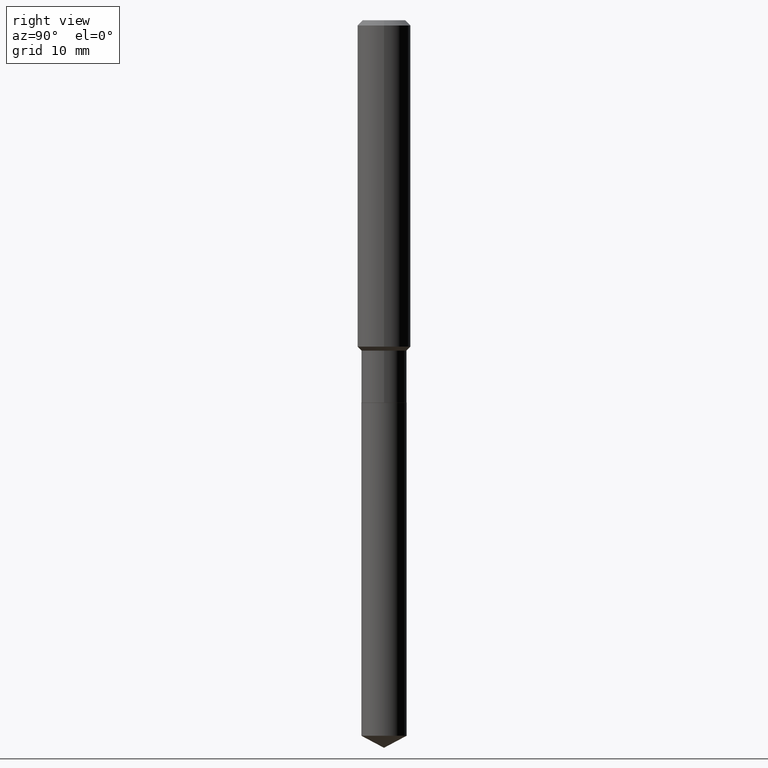
[diagram: clean part render]
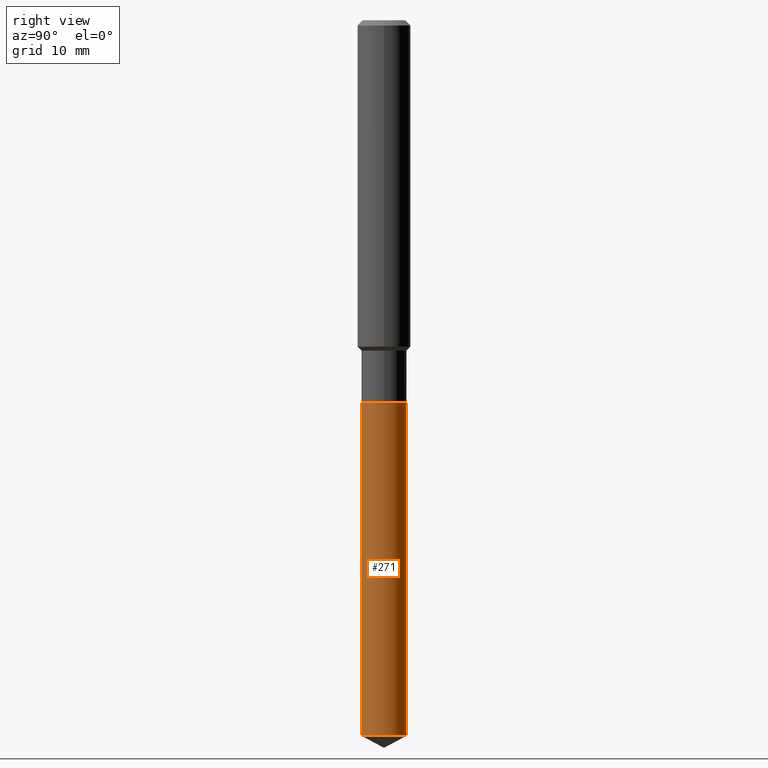
[diagram: same view with one face highlighted and labeled with its STEP entity id]
A machine part, right view. The second image highlights one B-rep face of the part: STEP entity #271.
In plain terms, the highlighted cylindrical surface (edge-blend (fillet) strip) has radius 2.5502 mm, axis along (-0, 0, 1).
Its self-contained STEP definition (entity closure, byte-faithful):
#31 = AXIS2_PLACEMENT_3D ( 'NONE', #105, #298, #260 ) ;
#42 = CARTESIAN_POINT ( 'NONE',  ( -7.010894528396234726E-16, -0.1004000000000110776, -3.174916373061186459 ) ) ;
#55 = DIRECTION ( 'NONE',  ( -6.982962677686266711E-15, -1.000000000000000000, 2.720964137115799877E-15 ) ) ;
#61 = CARTESIAN_POINT ( 'NONE',  ( -7.010894528396596616E-16, -0.1004000000000059289, -1.696800000000000086 ) ) ;
#71 = AXIS2_PLACEMENT_3D ( 'NONE', #234, #197, #55 ) ;
#76 = EDGE_CURVE ( 'NONE', #121, #106, #477, .T. ) ;
#102 = LINE ( 'NONE', #61, #257 ) ;
#105 = CARTESIAN_POINT ( 'NONE',  ( 4.149471470334940863E-29, -5.924345535749050380E-15, -1.696800000000000308 ) ) ;
#106 = VERTEX_POINT ( 'NONE', #254 ) ;
#115 = ORIENTED_EDGE ( 'NONE', *, *, #152, .F. ) ;
#121 = VERTEX_POINT ( 'NONE', #356 ) ;
#145 = DIRECTION ( 'NONE',  ( -2.445437338311188488E-29, 3.491526402629679676E-15, 1.000000000000000000 ) ) ;
#146 = EDGE_CURVE ( 'NONE', #482, #106, #175, .T. ) ;
#152 = EDGE_CURVE ( 'NONE', #385, #121, #102, .T. ) ;
#158 = ORIENTED_EDGE ( 'NONE', *, *, #76, .F. ) ;
#166 = EDGE_LOOP ( 'NONE', ( #487, #443, #158, #115 ) ) ;
#175 = LINE ( 'NONE', #178, #252 ) ;
#178 = CARTESIAN_POINT ( 'NONE',  ( 7.133849067031820241E-16, 0.1003999999999940773, -1.696800000000000530 ) ) ;
#183 = CYLINDRICAL_SURFACE ( 'NONE', #31, 0.1004000000000000031 ) ;
#197 = DIRECTION ( 'NONE',  ( -2.445437338311188488E-29, 3.491526402629679676E-15, 1.000000000000000000 ) ) ;
#226 = DIRECTION ( 'NONE',  ( -6.982962677686266711E-15, -1.000000000000000000, 5.441928274231599754E-15 ) ) ;
#234 = CARTESIAN_POINT ( 'NONE',  ( 4.149471470334940863E-29, -5.924345535749050380E-15, -1.696800000000000308 ) ) ;
#252 = VECTOR ( 'NONE', #321, 39.37007874015748143 ) ;
#254 = CARTESIAN_POINT ( 'NONE',  ( 7.133849067032184103E-16, 0.1003999999999940773, -1.696800000000000530 ) ) ;
#257 = VECTOR ( 'NONE', #324, 39.37007874015748143 ) ;
#258 = CARTESIAN_POINT ( 'NONE',  ( 7.764112439387876695E-29, -1.108522787845140694E-14, -3.174916373061187347 ) ) ;
#260 = DIRECTION ( 'NONE',  ( -6.982962677686266711E-15, -1.000000000000000000, 2.720964137115799877E-15 ) ) ;
#271 = ADVANCED_FACE ( 'NONE', ( #307 ), #183, .T. ) ;
#298 = DIRECTION ( 'NONE',  ( -2.445437338311188488E-29, 3.491526402629679676E-15, 1.000000000000000000 ) ) ;
#306 = EDGE_CURVE ( 'NONE', #385, #482, #418, .T. ) ;
#307 = FACE_OUTER_BOUND ( 'NONE', #166, .T. ) ;
#321 = DIRECTION ( 'NONE',  ( -2.445437338311188488E-29, 3.491526402629679676E-15, 1.000000000000000000 ) ) ;
#324 = DIRECTION ( 'NONE',  ( -2.445437338311188488E-29, 3.491526402629679676E-15, 1.000000000000000000 ) ) ;
#346 = CARTESIAN_POINT ( 'NONE',  ( 7.133849067032180158E-16, 0.1003999999999889148, -3.174916373061187791 ) ) ;
#356 = CARTESIAN_POINT ( 'NONE',  ( -7.010894528396596616E-16, -0.1004000000000059289, -1.696800000000000086 ) ) ;
#365 = AXIS2_PLACEMENT_3D ( 'NONE', #258, #145, #226 ) ;
#385 = VERTEX_POINT ( 'NONE', #42 ) ;
#418 = CIRCLE ( 'NONE', #365, 0.1004000000000000031 ) ;
#443 = ORIENTED_EDGE ( 'NONE', *, *, #146, .T. ) ;
#477 = CIRCLE ( 'NONE', #71, 0.1004000000000000031 ) ;
#482 = VERTEX_POINT ( 'NONE', #346 ) ;
#487 = ORIENTED_EDGE ( 'NONE', *, *, #306, .T. ) ;